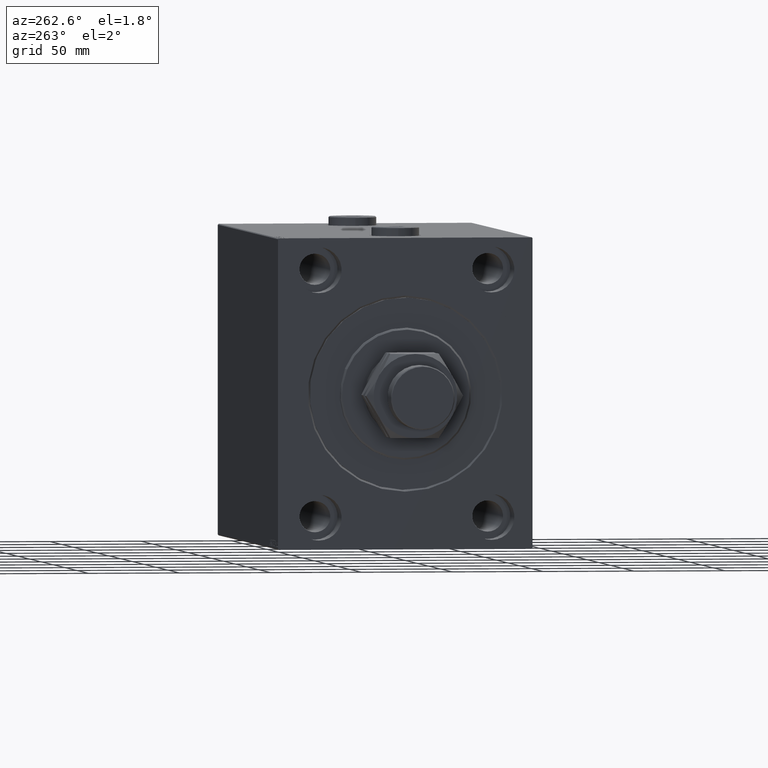
[diagram: clean part render]
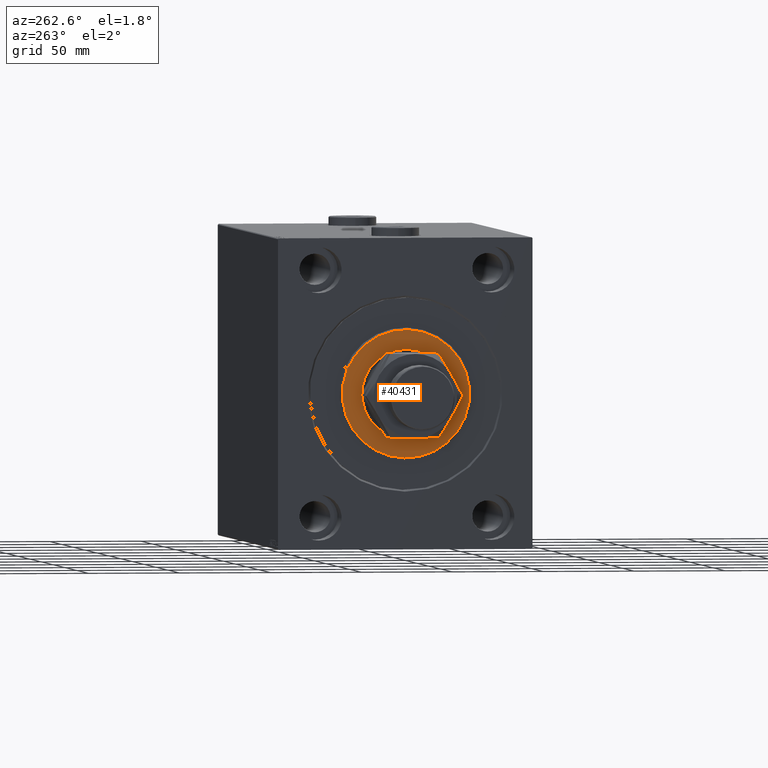
[diagram: same view with one face highlighted and labeled with its STEP entity id]
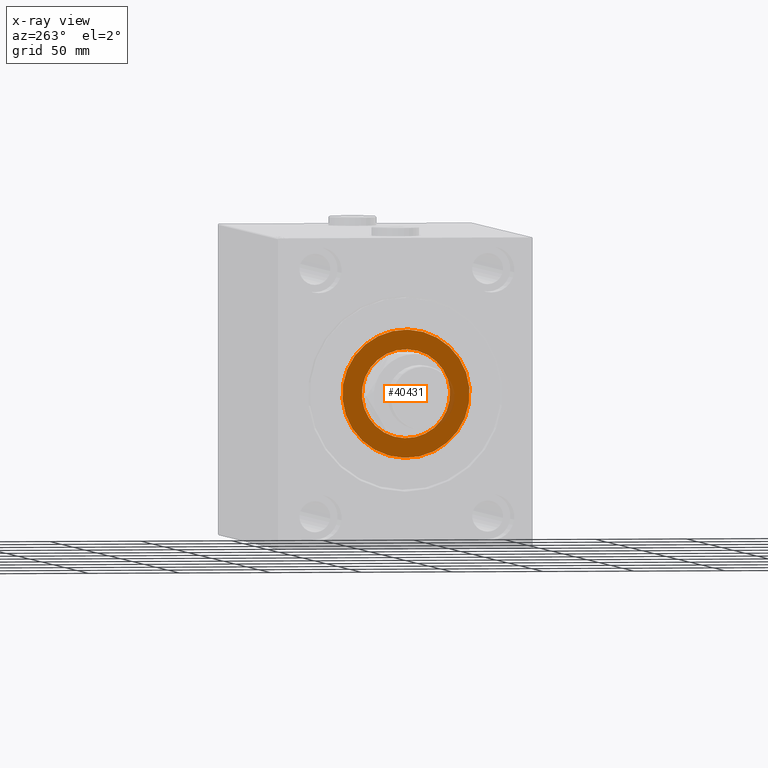
[diagram: x-ray of the same camera — body ghosted, the highlighted face saturated]
A machine part, auxiliary view. The second image highlights one B-rep face of the part: STEP entity #40431.
The next image is the same camera in x-ray: the body ghosted, the highlighted face saturated — about 3% of this face is hidden behind the body in this view.
In plain terms, the highlighted planar face has unit normal (-1, 0, 0).
Its self-contained STEP definition (entity closure, byte-faithful):
#1223 = CARTESIAN_POINT ( 'NONE',  ( 3.000000000000000000, 4.347496136973104859E-15, -35.00000000000002842 ) ) ;
#2811 = ORIENTED_EDGE ( 'NONE', *, *, #44059, .T. ) ;
#3330 = DIRECTION ( 'NONE',  ( -1.000000000000000000, 0.000000000000000000, -0.000000000000000000 ) ) ;
#5411 = DIRECTION ( 'NONE',  ( 1.000000000000000000, -0.000000000000000000, 0.000000000000000000 ) ) ;
#5639 = DIRECTION ( 'NONE',  ( 0.000000000000000000, 0.000000000000000000, -1.000000000000000000 ) ) ;
#6140 = VERTEX_POINT ( 'NONE', #43687 ) ;
#6202 = DIRECTION ( 'NONE',  ( 1.000000000000000000, -0.000000000000000000, 0.000000000000000000 ) ) ;
#7789 = CARTESIAN_POINT ( 'NONE',  ( 3.000000000000000000, 0.000000000000000000, 0.000000000000000000 ) ) ;
#7810 = CIRCLE ( 'NONE', #34380, 35.00000000000002842 ) ;
#8203 = CIRCLE ( 'NONE', #21856, 24.25000000000000000 ) ;
#10195 = DIRECTION ( 'NONE',  ( -1.000000000000000000, 0.000000000000000000, -0.000000000000000000 ) ) ;
#11266 = EDGE_CURVE ( 'NONE', #45648, #15876, #39671, .T. ) ;
#12560 = CARTESIAN_POINT ( 'NONE',  ( 3.000000000000000000, 0.000000000000000000, 0.000000000000000000 ) ) ;
#12945 = EDGE_LOOP ( 'NONE', ( #31841, #17587 ) ) ;
#15876 = VERTEX_POINT ( 'NONE', #23291 ) ;
#16912 = FACE_BOUND ( 'NONE', #12945, .T. ) ;
#17587 = ORIENTED_EDGE ( 'NONE', *, *, #11266, .T. ) ;
#19054 = EDGE_LOOP ( 'NONE', ( #2811, #26637 ) ) ;
#20014 = CARTESIAN_POINT ( 'NONE',  ( 3.000000000000000000, 0.000000000000000000, 0.000000000000000000 ) ) ;
#21593 = DIRECTION ( 'NONE',  ( 0.000000000000000000, 0.000000000000000000, -1.000000000000000000 ) ) ;
#21856 = AXIS2_PLACEMENT_3D ( 'NONE', #32076, #10195, #24693 ) ;
#23291 = CARTESIAN_POINT ( 'NONE',  ( 3.000000000000000000, 0.000000000000000000, 24.25000000000000000 ) ) ;
#23658 = CIRCLE ( 'NONE', #38114, 35.00000000000002842 ) ;
#23677 = AXIS2_PLACEMENT_3D ( 'NONE', #24279, #3330, #25231 ) ;
#24279 = CARTESIAN_POINT ( 'NONE',  ( 3.000000000000000000, 0.000000000000000000, 0.000000000000000000 ) ) ;
#24693 = DIRECTION ( 'NONE',  ( 0.000000000000000000, 0.000000000000000000, -1.000000000000000000 ) ) ;
#25231 = DIRECTION ( 'NONE',  ( 0.000000000000000000, 0.000000000000000000, -1.000000000000000000 ) ) ;
#26637 = ORIENTED_EDGE ( 'NONE', *, *, #46666, .T. ) ;
#27851 = DIRECTION ( 'NONE',  ( 0.000000000000000000, 0.000000000000000000, -1.000000000000000000 ) ) ;
#29886 = EDGE_CURVE ( 'NONE', #15876, #45648, #8203, .T. ) ;
#30342 = VERTEX_POINT ( 'NONE', #1223 ) ;
#31841 = ORIENTED_EDGE ( 'NONE', *, *, #29886, .T. ) ;
#32076 = CARTESIAN_POINT ( 'NONE',  ( 3.000000000000000000, 0.000000000000000000, 0.000000000000000000 ) ) ;
#34380 = AXIS2_PLACEMENT_3D ( 'NONE', #12560, #5411, #5639 ) ;
#36342 = DIRECTION ( 'NONE',  ( 1.000000000000000000, -0.000000000000000000, 0.000000000000000000 ) ) ;
#38103 = PLANE ( 'NONE',  #43465 ) ;
#38114 = AXIS2_PLACEMENT_3D ( 'NONE', #7789, #36342, #21593 ) ;
#39375 = CARTESIAN_POINT ( 'NONE',  ( 3.000000000000000000, 2.969768487932331287E-15, -24.25000000000000000 ) ) ;
#39671 = CIRCLE ( 'NONE', #23677, 24.25000000000000000 ) ;
#40431 = ADVANCED_FACE ( 'NONE', ( #45023, #16912 ), #38103, .T. ) ;
#43465 = AXIS2_PLACEMENT_3D ( 'NONE', #20014, #6202, #27851 ) ;
#43687 = CARTESIAN_POINT ( 'NONE',  ( 3.000000000000000000, 0.000000000000000000, 35.00000000000002842 ) ) ;
#44059 = EDGE_CURVE ( 'NONE', #6140, #30342, #23658, .T. ) ;
#45023 = FACE_OUTER_BOUND ( 'NONE', #19054, .T. ) ;
#45648 = VERTEX_POINT ( 'NONE', #39375 ) ;
#46666 = EDGE_CURVE ( 'NONE', #30342, #6140, #7810, .T. ) ;